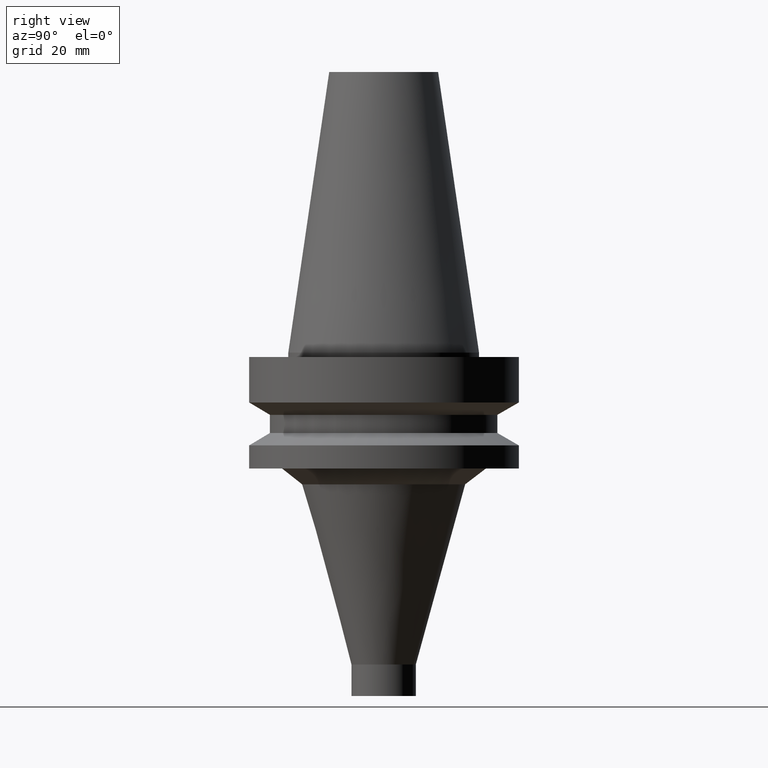
[diagram: clean part render]
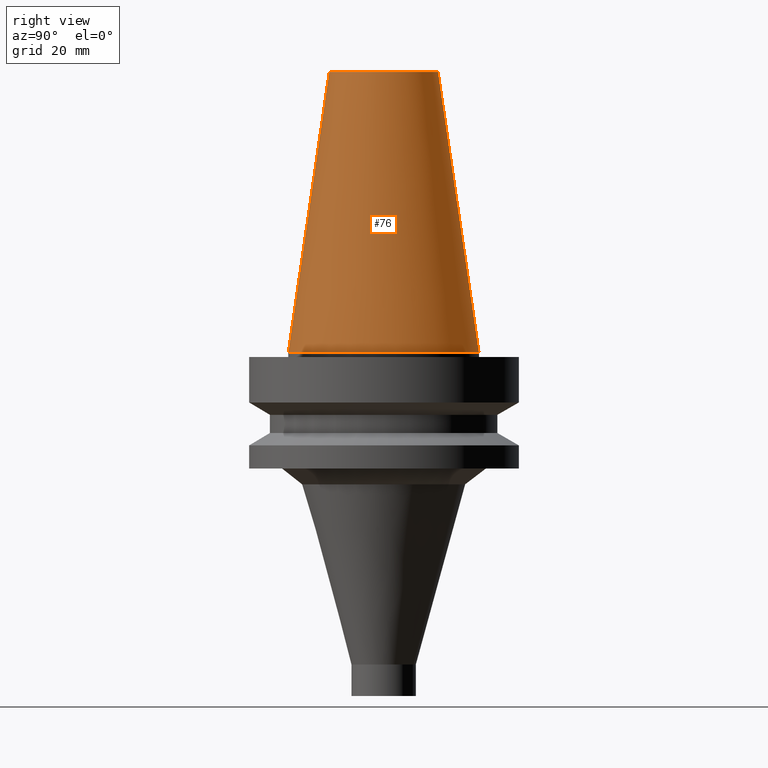
[diagram: same view with one face highlighted and labeled with its STEP entity id]
A machine part, right view. The second image highlights one B-rep face of the part: STEP entity #76.
In plain terms, the highlighted conical surface has half-angle 8.297 deg.
Its self-contained STEP definition (entity closure, byte-faithful):
#76=ADVANCED_FACE('',(#92,#93),#94,.T.);
#92=FACE_BOUND('',#132,.T.);
#93=FACE_BOUND('',#133,.T.);
#94=CONICAL_SURFACE('',#134,17.4562500026599,0.144812498159292);
#132=EDGE_LOOP('',(#174));
#133=EDGE_LOOP('',(#175));
#134=AXIS2_PLACEMENT_3D('',#176,#177,#178);
#174=ORIENTED_EDGE('',*,*,#239,.F.);
#175=ORIENTED_EDGE('',*,*,#238,.T.);
#176=CARTESIAN_POINT('',(-2.00229751660592E-015,-4.00459503321184E-015,32.7));
#177=DIRECTION('',(6.12323399573677E-017,1.22464679914735E-016,-1.0));
#178=DIRECTION('',(-1.23259516440783E-032,1.0,1.22464679914735E-016));
#238=EDGE_CURVE('',#251,#251,#252,.T.);
#239=EDGE_CURVE('',#253,#253,#254,.T.);
#251=VERTEX_POINT('',#277);
#252=CIRCLE('',#278,12.6875000053197);
#253=VERTEX_POINT('',#279);
#254=CIRCLE('',#280,22.225);
#277=CARTESIAN_POINT('',(-4.00459503321185E-015,12.6875000053197,65.4));
#278=AXIS2_PLACEMENT_3D('',#303,#304,#305);
#279=CARTESIAN_POINT('',(-2.7394427528964E-031,22.225,2.72177751110499E-015));
#280=AXIS2_PLACEMENT_3D('',#306,#307,#308);
#303=CARTESIAN_POINT('',(-4.00459503321185E-015,-8.00919006642369E-015,65.4));
#304=DIRECTION('',(6.12323399573677E-017,1.22464679914735E-016,-1.0));
#305=DIRECTION('',(-1.23259516440783E-032,1.0,1.22464679914735E-016));
#306=CARTESIAN_POINT('',(0.0,0.0,0.0));
#307=DIRECTION('',(6.12323399573677E-017,1.22464679914735E-016,-1.0));
#308=DIRECTION('',(-1.23259516440783E-032,1.0,1.22464679914735E-016));